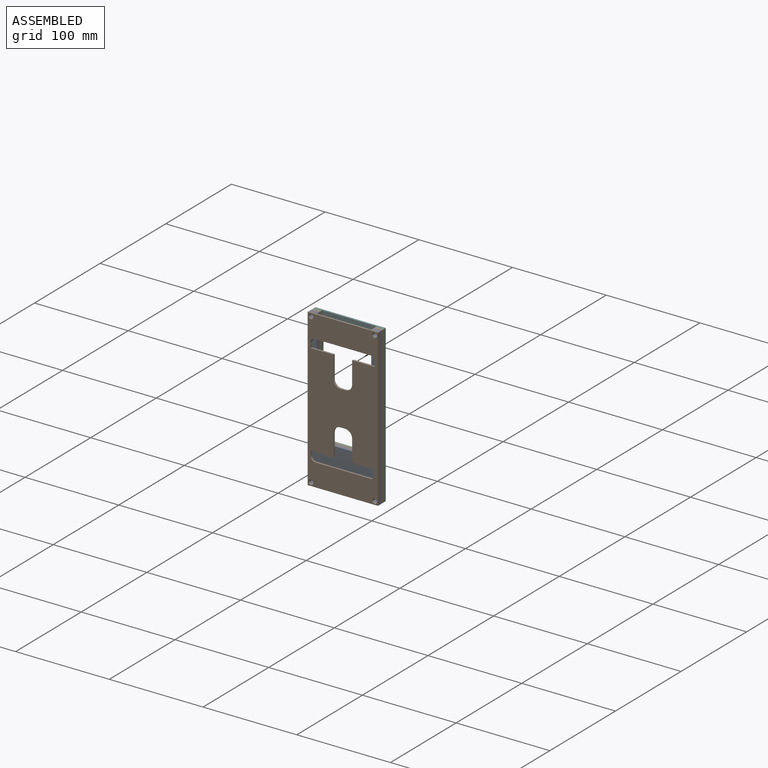
[diagram: assembled view]
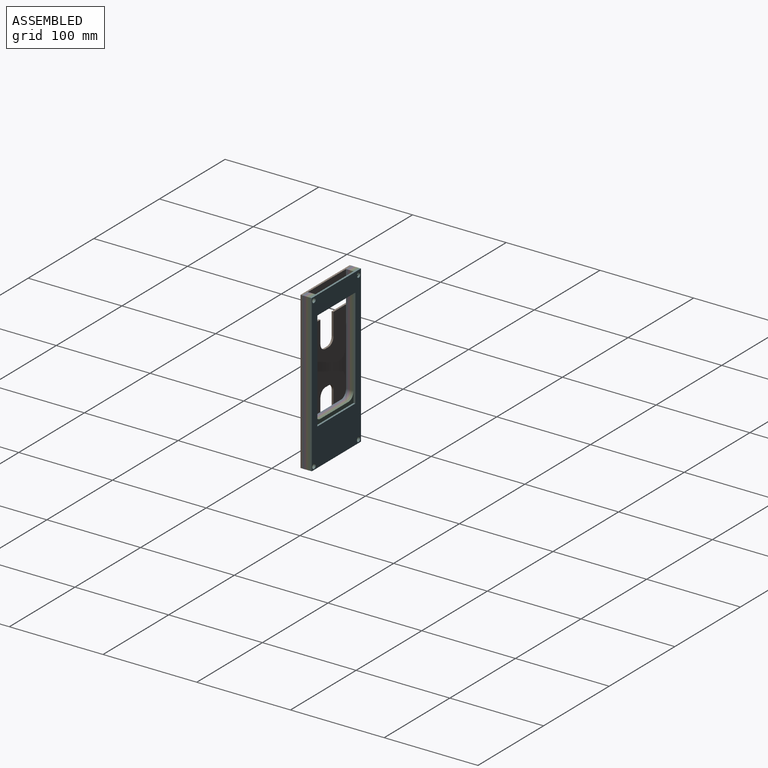
[diagram: assembled view, second angle]
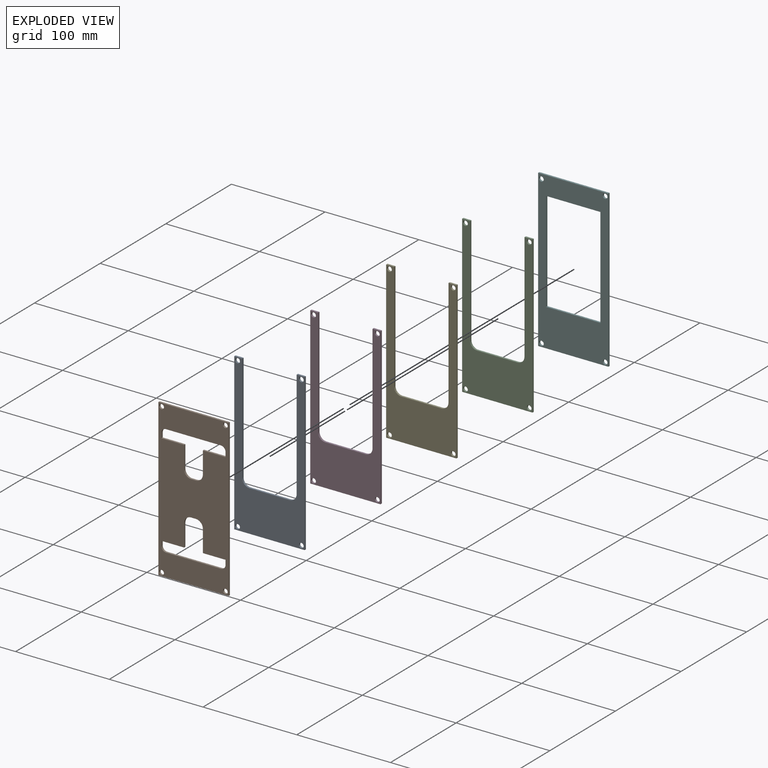
[diagram: exploded view]
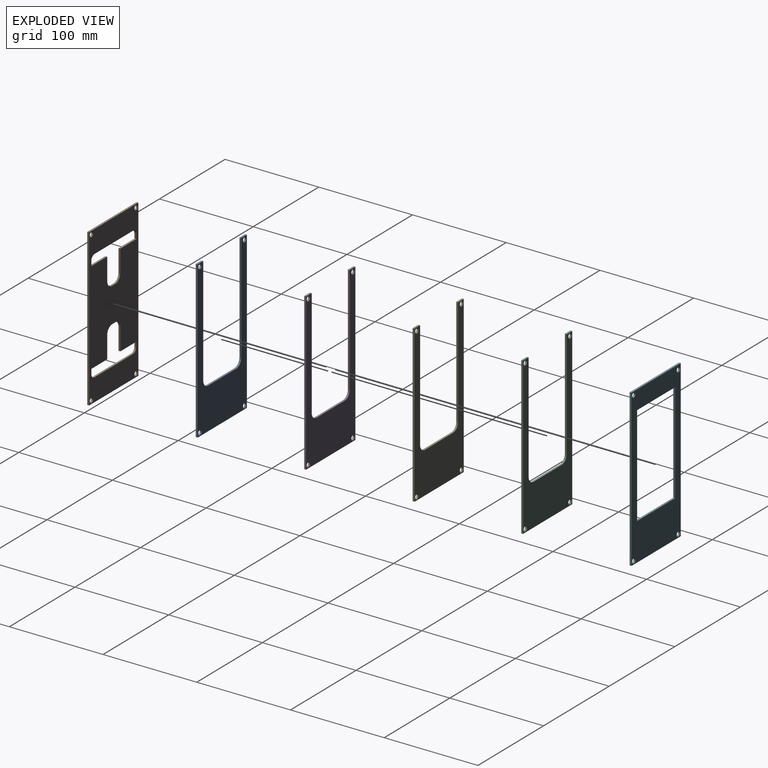
[diagram: exploded view, second angle]
ASSEMBLY  parts=6 mates=5
PART A: 16 faces, bbox 75x2x167 mm
  f0: plane 8.5x2mm, normal (0,0,1), area 17mm2, adj f1,f9,f10,f11
  f1: plane 167x2mm, normal (-1,0,0), area 334mm2, adj f0,f2,f10,f11
  f2: plane 75x2mm, normal (0,0,-1), area 150mm2, adj f1,f3,f10,f11
  f3: plane 167x2mm, normal (1,0,0), area 334mm2, adj f2,f4,f10,f11
  f4: plane 8.5x2mm, normal (0,0,1), area 17mm2, adj f3,f5,f10,f11
  f5: plane 115.38x2mm, normal (-1,0,0), area 230.8mm2, adj f4,f6,f10,f11
  f6: cylinder r=7.62mm len=7.62mm, axis (0,1,0), area 23.9mm2, adj f5,f7,f10,f11
  f7: plane 42.77x2mm, normal (0,0,1), area 85.5mm2, adj f6,f8,f10,f11
  f8: cylinder r=7.62mm len=7.62mm, axis (0,1,0), area 23.9mm2, adj f7,f9,f10,f11
  f9: plane 115.38x2mm, normal (1,0,0), area 230.8mm2, adj f0,f8,f10,f11
  f10: plane 167x75mm, normal (0,-1,0), area 5337.4mm2, adj f0,f1,f2,f3,f4,f5,f6,f7
  f11: plane 167x75mm, normal (0,1,0), area 5337.4mm2, adj f0,f1,f2,f3,f4,f5,f6,f7
  f12: cylinder r=2.5mm len=5mm, axis (0,-1,0), area 31.4mm2, adj f10,f11
  f13: cylinder r=2.5mm len=5mm, axis (0,-1,0), area 31.4mm2, adj f10,f11
  f14: cylinder r=2.5mm len=5mm, axis (0,-1,0), area 31.4mm2, adj f10,f11
  f15: cylinder r=2.5mm len=5mm, axis (0,-1,0), area 31.4mm2, adj f10,f11
PART B: 34 faces, bbox 75x2x167 mm
  f0: plane 75x2mm, normal (0,0,1), area 150mm2, adj f1,f27,f28,f29
  f1: plane 167x2mm, normal (-1,0,0), area 334mm2, adj f0,f2,f28,f29
  f2: plane 75x2mm, normal (0,0,-1), area 150mm2, adj f1,f27,f28,f29
  f3: plane 24.2x2mm, normal (0,0,1), area 48.4mm2, adj f4,f25,f28,f29
  f4: plane 23.38x2mm, normal (-1,0,0), area 46.8mm2, adj f3,f5,f28,f29
  f5: cylinder r=7.62mm len=7.62mm, axis (0,1,0), area 23.9mm2, adj f4,f6,f28,f29
  f6: plane 4.77x2mm, normal (0,0,1), area 9.5mm2, adj f5,f7,f28,f29
  f7: cylinder r=7.62mm len=7.62mm, axis (0,1,0), area 23.9mm2, adj f6,f8,f28,f29
  f8: plane 23.38x2mm, normal (1,0,0), area 46.8mm2, adj f7,f9,f28,f29
  f9: plane 24.2x2mm, normal (0,0,1), area 48.4mm2, adj f8,f10,f28,f29
  f10: plane 5x2mm, normal (1,0,0), area 10mm2, adj f9,f11,f28,f29
  f11: cylinder r=5mm len=5mm, axis (0,1,0), area 15.7mm2, adj f10,f12,f28,f29
  f12: plane 58.4x2mm, normal (0,0,-1), area 116.8mm2, adj f11,f13,f28,f29
  f13: cylinder r=5mm len=5mm, axis (0,1,0), area 15.7mm2, adj f12,f25,f28,f29
  f14: plane 5x2mm, normal (1,0,0), area 10mm2, adj f15,f26,f28,f29
  f15: plane 24.2x2mm, normal (0,0,-1), area 48.4mm2, adj f14,f16,f28,f29
  f16: plane 23.38x2mm, normal (1,0,0), area 46.8mm2, adj f15,f17,f28,f29
  f17: cylinder r=7.62mm len=7.62mm, axis (0,1,0), area 23.9mm2, adj f16,f18,f28,f29
  f18: plane 4.77x2mm, normal (0,0,-1), area 9.5mm2, adj f17,f19,f28,f29
  f19: cylinder r=7.62mm len=7.62mm, axis (0,1,0), area 23.9mm2, adj f18,f20,f28,f29
  f20: plane 23.38x2mm, normal (-1,0,0), area 46.8mm2, adj f19,f21,f28,f29
  f21: plane 24.2x2mm, normal (0,0,-1), area 48.4mm2, adj f20,f22,f28,f29
  f22: plane 5x2mm, normal (-1,0,0), area 10mm2, adj f21,f23,f28,f29
  f23: cylinder r=5mm len=5mm, axis (0,1,0), area 15.7mm2, adj f22,f24,f28,f29
  f24: plane 58.4x2mm, normal (0,0,1), area 116.8mm2, adj f23,f26,f28,f29
  f25: plane 5x2mm, normal (-1,0,0), area 10mm2, adj f3,f13,f28,f29
  f26: cylinder r=5mm len=5mm, axis (0,1,0), area 15.7mm2, adj f14,f24,f28,f29
  f27: plane 167x2mm, normal (1,0,0), area 334mm2, adj f0,f2,f28,f29
  f28: plane 167x75mm, normal (0,-1,0), area 9909.7mm2, adj f0,f1,f2,f3,f4,f5,f6,f7
  f29: plane 167x75mm, normal (0,1,0), area 9909.7mm2, adj f0,f1,f2,f3,f4,f5,f6,f7
  f30: cylinder r=2.5mm len=5mm, axis (0,-1,0), area 31.4mm2, adj f28,f29
  f31: cylinder r=2.5mm len=5mm, axis (0,-1,0), area 31.4mm2, adj f28,f29
  f32: cylinder r=2.5mm len=5mm, axis (0,-1,0), area 31.4mm2, adj f28,f29
  f33: cylinder r=2.5mm len=5mm, axis (0,-1,0), area 31.4mm2, adj f28,f29
PART C: same geometry as A
PART D: same geometry as A
PART E: same geometry as A
PART F: 14 faces, bbox 75x2x167 mm
  f0: plane 75x2mm, normal (0,0,1), area 150mm2, adj f1,f7,f8,f9
  f1: plane 167x2mm, normal (-1,0,0), area 334mm2, adj f0,f2,f8,f9
  f2: plane 75x2mm, normal (0,0,-1), area 150mm2, adj f1,f7,f8,f9
  f3: plane 107x2mm, normal (1,0,0), area 214mm2, adj f4,f6,f8,f9
  f4: plane 58x2mm, normal (0,0,-1), area 116mm2, adj f3,f5,f8,f9
  f5: plane 107x2mm, normal (-1,0,0), area 214mm2, adj f4,f6,f8,f9
  f6: plane 58x2mm, normal (0,0,1), area 116mm2, adj f3,f5,f8,f9
  f7: plane 167x2mm, normal (1,0,0), area 334mm2, adj f0,f2,f8,f9
  f8: plane 167x75mm, normal (0,-1,0), area 6240.5mm2, adj f0,f1,f2,f3,f4,f5,f6,f7
  f9: plane 167x75mm, normal (0,1,0), area 6240.5mm2, adj f0,f1,f2,f3,f4,f5,f6,f7
  f10: cylinder r=2.5mm len=5mm, axis (0,-1,0), area 31.4mm2, adj f8,f9
  f11: cylinder r=2.5mm len=5mm, axis (0,-1,0), area 31.4mm2, adj f8,f9
  f12: cylinder r=2.5mm len=5mm, axis (0,-1,0), area 31.4mm2, adj f8,f9
  f13: cylinder r=2.5mm len=5mm, axis (0,-1,0), area 31.4mm2, adj f8,f9
PLACE A t=(161.54,127.61,-116.81)mm
PLACE B t=(148.22,125.61,-71.71)mm
PLACE C t=(161.54,133.61,-116.81)mm
PLACE D t=(161.54,129.61,-116.81)mm
PLACE E t=(161.54,131.61,-116.81)mm
PLACE F t=(158.07,135.61,-117.52)mm
MATE fastened C.f10 <-> E.f11  axis (0,-1,0) through (152.48,131.61,-155.21)mm
MATE fastened D.f10 <-> A.f11  axis (0,-1,0) through (152.48,127.61,-155.21)mm
MATE fastened F.f8 <-> C.f11  axis (0,-1,0) through (152.48,133.61,-155.21)mm
MATE fastened E.f10 <-> D.f11  axis (0,-1,0) through (152.48,129.61,-155.21)mm
MATE fastened B.f29 <-> A.f10  axis (0,1,0) through (152.48,125.61,-155.21)mm
